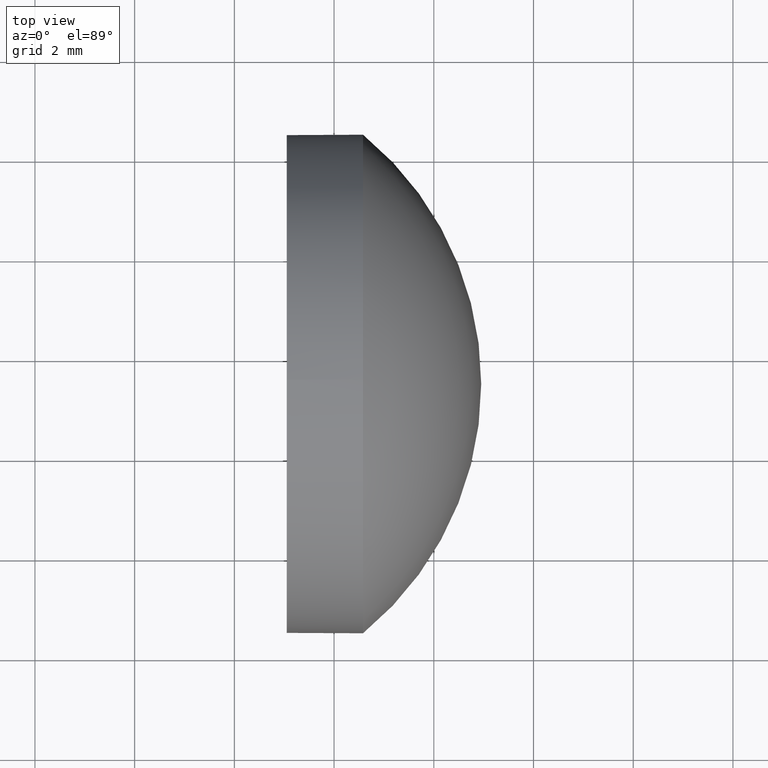
[diagram: clean part render]
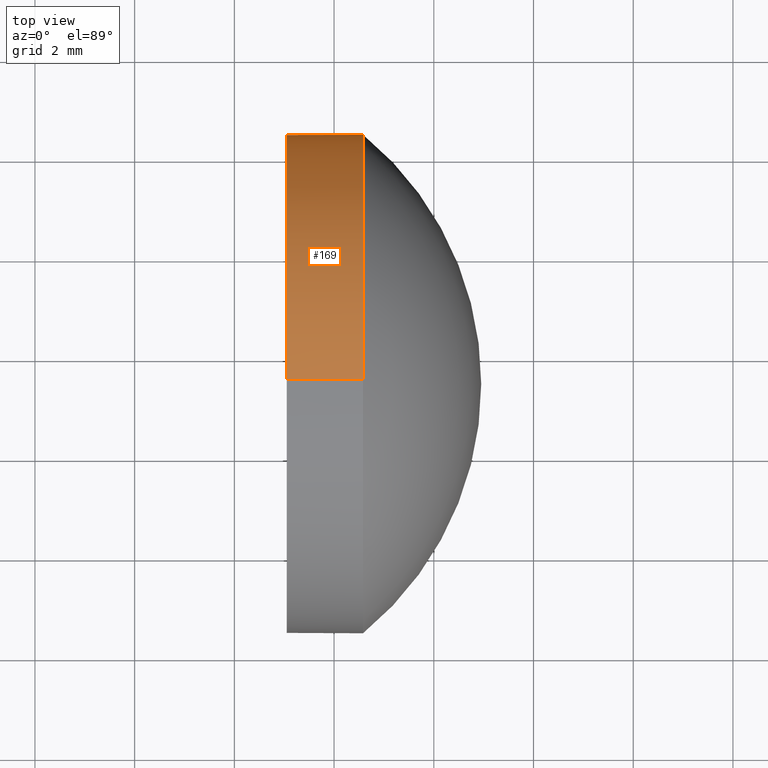
[diagram: same view with one face highlighted and labeled with its STEP entity id]
A machine part, top view. The second image highlights one B-rep face of the part: STEP entity #169.
In plain terms, the highlighted cylindrical surface (partial cylindrical patch) has radius 5 mm, axis along (-1, -0, -0).
Its self-contained STEP definition (entity closure, byte-faithful):
#4 = CARTESIAN_POINT ( 'NONE',  ( 424.5813353116467400, -21.53983811112432500, 0.0000000000000000000 ) ) ;
#6 = ORIENTED_EDGE ( 'NONE', *, *, #170, .T. ) ;
#11 = DIRECTION ( 'NONE',  ( -1.000000000000000000, -0.0000000000000000000, -0.0000000000000000000 ) ) ;
#13 = CARTESIAN_POINT ( 'NONE',  ( 424.5813353116467400, -26.53983811112431500, 0.0000000000000000000 ) ) ;
#14 = VERTEX_POINT ( 'NONE', #4 ) ;
#18 = VERTEX_POINT ( 'NONE', #160 ) ;
#22 = VERTEX_POINT ( 'NONE', #172 ) ;
#28 = DIRECTION ( 'NONE',  ( 0.0000000000000000000, 0.0000000000000000000, 1.000000000000000000 ) ) ;
#33 = LINE ( 'NONE', #110, #78 ) ;
#38 = DIRECTION ( 'NONE',  ( -1.000000000000000000, -0.0000000000000000000, -0.0000000000000000000 ) ) ;
#39 = AXIS2_PLACEMENT_3D ( 'NONE', #13, #11, #28 ) ;
#41 = DIRECTION ( 'NONE',  ( -1.000000000000000000, -0.0000000000000000000, -0.0000000000000000000 ) ) ;
#52 = ORIENTED_EDGE ( 'NONE', *, *, #97, .F. ) ;
#54 = CARTESIAN_POINT ( 'NONE',  ( 422.2536630575812600, -26.53983811112431500, 4.999999999999997300 ) ) ;
#56 = CARTESIAN_POINT ( 'NONE',  ( 423.0513353116466500, -26.53983811112431500, 0.0000000000000000000 ) ) ;
#57 = VERTEX_POINT ( 'NONE', #122 ) ;
#60 = ORIENTED_EDGE ( 'NONE', *, *, #105, .T. ) ;
#70 = CYLINDRICAL_SURFACE ( 'NONE', #74, 4.999999999999997300 ) ;
#72 = CIRCLE ( 'NONE', #88, 4.999999999999997300 ) ;
#74 = AXIS2_PLACEMENT_3D ( 'NONE', #138, #41, #98 ) ;
#75 = CIRCLE ( 'NONE', #39, 4.999999999999997300 ) ;
#78 = VECTOR ( 'NONE', #182, 1000.000000000000000 ) ;
#88 = AXIS2_PLACEMENT_3D ( 'NONE', #56, #38, #136 ) ;
#93 = CARTESIAN_POINT ( 'NONE',  ( 424.5813353116467400, -26.53983811112431500, 0.0000000000000000000 ) ) ;
#97 = EDGE_CURVE ( 'NONE', #164, #22, #186, .T. ) ;
#98 = DIRECTION ( 'NONE',  ( 0.0000000000000000000, 0.0000000000000000000, 1.000000000000000000 ) ) ;
#100 = ORIENTED_EDGE ( 'NONE', *, *, #150, .T. ) ;
#101 = AXIS2_PLACEMENT_3D ( 'NONE', #93, #139, #163 ) ;
#102 = EDGE_CURVE ( 'NONE', #22, #57, #72, .T. ) ;
#103 = FACE_OUTER_BOUND ( 'NONE', #157, .T. ) ;
#105 = EDGE_CURVE ( 'NONE', #14, #18, #128, .T. ) ;
#108 = VECTOR ( 'NONE', #147, 1000.000000000000000 ) ;
#110 = CARTESIAN_POINT ( 'NONE',  ( 422.2536630575812600, -26.53983811112431500, -4.999999999999997300 ) ) ;
#122 = CARTESIAN_POINT ( 'NONE',  ( 423.0513353116466500, -26.53983811112431500, -4.999999999999997300 ) ) ;
#128 = CIRCLE ( 'NONE', #101, 4.999999999999997300 ) ;
#136 = DIRECTION ( 'NONE',  ( 0.0000000000000000000, 0.0000000000000000000, 1.000000000000000000 ) ) ;
#138 = CARTESIAN_POINT ( 'NONE',  ( 422.2536630575812600, -26.53983811112431500, 0.0000000000000000000 ) ) ;
#139 = DIRECTION ( 'NONE',  ( -1.000000000000000000, -0.0000000000000000000, -0.0000000000000000000 ) ) ;
#147 = DIRECTION ( 'NONE',  ( -1.000000000000000000, -0.0000000000000000000, -0.0000000000000000000 ) ) ;
#150 = EDGE_CURVE ( 'NONE', #164, #14, #75, .T. ) ;
#157 = EDGE_LOOP ( 'NONE', ( #60, #6, #185, #52, #100 ) ) ;
#160 = CARTESIAN_POINT ( 'NONE',  ( 424.5813353116467400, -26.53983811112431500, -4.999999999999997300 ) ) ;
#163 = DIRECTION ( 'NONE',  ( 0.0000000000000000000, 0.0000000000000000000, 1.000000000000000000 ) ) ;
#164 = VERTEX_POINT ( 'NONE', #179 ) ;
#169 = ADVANCED_FACE ( 'NONE', ( #103 ), #70, .T. ) ;
#170 = EDGE_CURVE ( 'NONE', #18, #57, #33, .T. ) ;
#172 = CARTESIAN_POINT ( 'NONE',  ( 423.0513353116466500, -26.53983811112431500, 4.999999999999997300 ) ) ;
#179 = CARTESIAN_POINT ( 'NONE',  ( 424.5813353116467400, -26.53983811112431500, 4.999999999999997300 ) ) ;
#182 = DIRECTION ( 'NONE',  ( -1.000000000000000000, -0.0000000000000000000, -0.0000000000000000000 ) ) ;
#185 = ORIENTED_EDGE ( 'NONE', *, *, #102, .F. ) ;
#186 = LINE ( 'NONE', #54, #108 ) ;